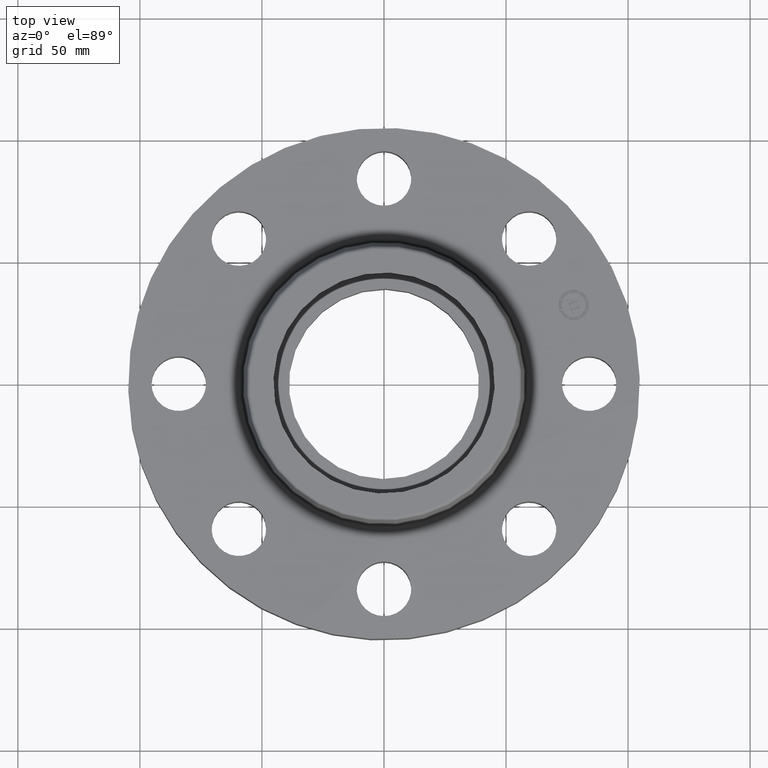
[diagram: clean part render]
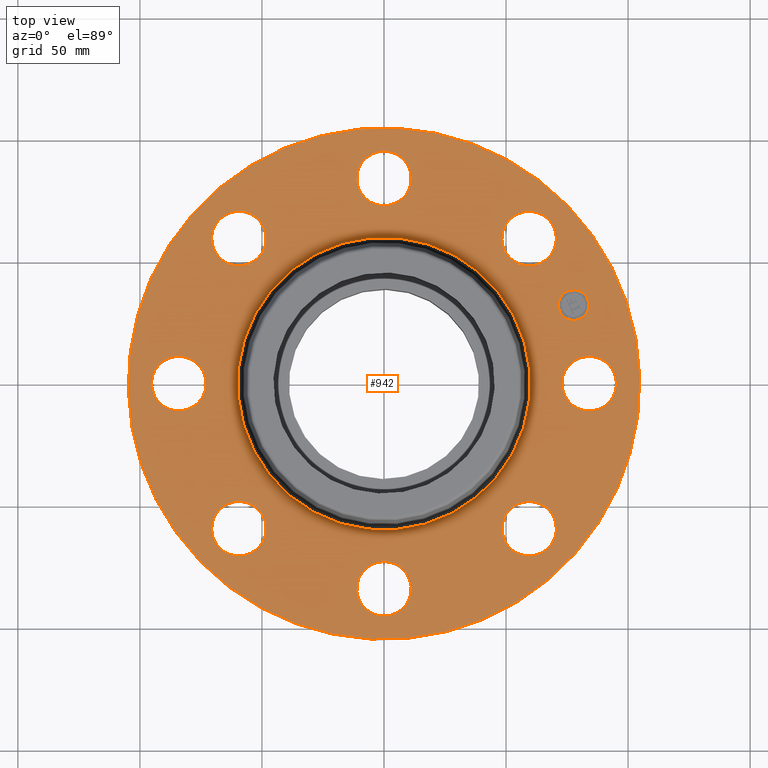
[diagram: same view with one face highlighted and labeled with its STEP entity id]
A machine part, top view. The second image highlights one B-rep face of the part: STEP entity #942.
In plain terms, the highlighted planar face has unit normal (0, 0, -1).
Its self-contained STEP definition (entity closure, byte-faithful):
#306=AXIS2_PLACEMENT_3D('Circle Axis2P3D',#304,#305,$) ;
#325=AXIS2_PLACEMENT_3D('Circle Axis2P3D',#323,#324,$) ;
#342=AXIS2_PLACEMENT_3D('Circle Axis2P3D',#340,#341,$) ;
#377=AXIS2_PLACEMENT_3D('Circle Axis2P3D',#375,#376,$) ;
#527=AXIS2_PLACEMENT_3D('Circle Axis2P3D',#525,#526,$) ;
#539=AXIS2_PLACEMENT_3D('Circle Axis2P3D',#537,#538,$) ;
#570=AXIS2_PLACEMENT_3D('Circle Axis2P3D',#568,#569,$) ;
#582=AXIS2_PLACEMENT_3D('Circle Axis2P3D',#580,#581,$) ;
#613=AXIS2_PLACEMENT_3D('Circle Axis2P3D',#611,#612,$) ;
#625=AXIS2_PLACEMENT_3D('Circle Axis2P3D',#623,#624,$) ;
#656=AXIS2_PLACEMENT_3D('Circle Axis2P3D',#654,#655,$) ;
#668=AXIS2_PLACEMENT_3D('Circle Axis2P3D',#666,#667,$) ;
#699=AXIS2_PLACEMENT_3D('Circle Axis2P3D',#697,#698,$) ;
#711=AXIS2_PLACEMENT_3D('Circle Axis2P3D',#709,#710,$) ;
#742=AXIS2_PLACEMENT_3D('Circle Axis2P3D',#740,#741,$) ;
#754=AXIS2_PLACEMENT_3D('Circle Axis2P3D',#752,#753,$) ;
#785=AXIS2_PLACEMENT_3D('Circle Axis2P3D',#783,#784,$) ;
#797=AXIS2_PLACEMENT_3D('Circle Axis2P3D',#795,#796,$) ;
#828=AXIS2_PLACEMENT_3D('Circle Axis2P3D',#826,#827,$) ;
#840=AXIS2_PLACEMENT_3D('Circle Axis2P3D',#838,#839,$) ;
#882=AXIS2_PLACEMENT_3D('Plane Axis2P3D',#879,#880,#881) ;
#926=AXIS2_PLACEMENT_3D('Circle Axis2P3D',#924,#925,$) ;
#935=AXIS2_PLACEMENT_3D('Circle Axis2P3D',#933,#934,$) ;
#301=CARTESIAN_POINT('Vertex',(-1.97763034675,-3.62002806781,1.25000000001)) ;
#304=CARTESIAN_POINT('Axis2P3D Location',(0.,0.,1.25000000001)) ;
#308=CARTESIAN_POINT('Vertex',(1.97763034675,3.62002806781,1.25000000001)) ;
#323=CARTESIAN_POINT('Axis2P3D Location',(0.,0.,1.25000000001)) ;
#340=CARTESIAN_POINT('Axis2P3D Location',(0.,0.,1.25000000001)) ;
#344=CARTESIAN_POINT('Vertex',(1.13161014174,2.07139847022,1.25000000001)) ;
#346=CARTESIAN_POINT('Vertex',(-1.13161014174,-2.07139847022,1.25000000001)) ;
#375=CARTESIAN_POINT('Axis2P3D Location',(0.,0.,1.25000000001)) ;
#515=CARTESIAN_POINT('Vertex',(2.76272528293,2.46440083944,1.25000000001)) ;
#522=CARTESIAN_POINT('Vertex',(1.91832160854,2.21664605203,1.25000000001)) ;
#525=CARTESIAN_POINT('Axis2P3D Location',(2.34052344574,2.34052344574,1.25000000001)) ;
#537=CARTESIAN_POINT('Axis2P3D Location',(2.34052344574,2.34052344574,1.25000000001)) ;
#558=CARTESIAN_POINT('Vertex',(0.210947236987,3.69613632725,1.25000000001)) ;
#565=CARTESIAN_POINT('Vertex',(-0.210947236987,2.92386367278,1.25000000001)) ;
#568=CARTESIAN_POINT('Axis2P3D Location',(-6.08037135779E-016,3.31000000001,1.25000000001)) ;
#580=CARTESIAN_POINT('Axis2P3D Location',(-6.08037135779E-016,3.31000000001,1.25000000001)) ;
#601=CARTESIAN_POINT('Vertex',(-2.46440083944,2.76272528293,1.25000000001)) ;
#608=CARTESIAN_POINT('Vertex',(-2.21664605203,1.91832160854,1.25000000001)) ;
#611=CARTESIAN_POINT('Axis2P3D Location',(-2.34052344574,2.34052344574,1.25000000001)) ;
#623=CARTESIAN_POINT('Axis2P3D Location',(-2.34052344574,2.34052344574,1.25000000001)) ;
#644=CARTESIAN_POINT('Vertex',(-3.69613632725,0.210947236987,1.25000000001)) ;
#651=CARTESIAN_POINT('Vertex',(-2.92386367278,-0.210947236987,1.25000000001)) ;
#654=CARTESIAN_POINT('Axis2P3D Location',(-3.31000000001,-4.05358090519E-016,1.25000000001)) ;
#666=CARTESIAN_POINT('Axis2P3D Location',(-3.31000000001,-4.05358090519E-016,1.25000000001)) ;
#687=CARTESIAN_POINT('Vertex',(-2.76272528293,-2.46440083944,1.25000000001)) ;
#694=CARTESIAN_POINT('Vertex',(-1.91832160854,-2.21664605203,1.25000000001)) ;
#697=CARTESIAN_POINT('Axis2P3D Location',(-2.34052344574,-2.34052344574,1.25000000001)) ;
#709=CARTESIAN_POINT('Axis2P3D Location',(-2.34052344574,-2.34052344574,1.25000000001)) ;
#730=CARTESIAN_POINT('Vertex',(-0.210947236987,-3.69613632725,1.25000000001)) ;
#737=CARTESIAN_POINT('Vertex',(0.210947236987,-2.92386367278,1.25000000001)) ;
#740=CARTESIAN_POINT('Axis2P3D Location',(-3.56803423843E-016,-3.31000000001,1.25000000001)) ;
#752=CARTESIAN_POINT('Axis2P3D Location',(-3.56803423843E-016,-3.31000000001,1.25000000001)) ;
#773=CARTESIAN_POINT('Vertex',(2.46440083944,-2.76272528293,1.25000000001)) ;
#780=CARTESIAN_POINT('Vertex',(2.21664605203,-1.91832160854,1.25000000001)) ;
#783=CARTESIAN_POINT('Axis2P3D Location',(2.34052344574,-2.34052344574,1.25000000001)) ;
#795=CARTESIAN_POINT('Axis2P3D Location',(2.34052344574,-2.34052344574,1.25000000001)) ;
#816=CARTESIAN_POINT('Vertex',(2.92386367278,0.210947236987,1.25000000001)) ;
#823=CARTESIAN_POINT('Vertex',(3.69613632725,-0.210947236987,1.25000000001)) ;
#826=CARTESIAN_POINT('Axis2P3D Location',(3.31000000001,0.,1.25000000001)) ;
#838=CARTESIAN_POINT('Axis2P3D Location',(3.31000000001,0.,1.25000000001)) ;
#879=CARTESIAN_POINT('Axis2P3D Location',(0.,4.12500000002,1.25000000001)) ;
#924=CARTESIAN_POINT('Axis2P3D Location',(3.05804125262,1.26668216113,1.25000000001)) ;
#928=CARTESIAN_POINT('Vertex',(2.96332710311,1.49534234543,1.25000000001)) ;
#930=CARTESIAN_POINT('Vertex',(3.15275540214,1.03802197684,1.25000000001)) ;
#933=CARTESIAN_POINT('Axis2P3D Location',(3.05804125262,1.26668216113,1.25000000001)) ;
#305=DIRECTION('Axis2P3D Direction',(0.,0.,-0.0393700787402)) ;
#324=DIRECTION('Axis2P3D Direction',(0.,0.,-0.0393700787402)) ;
#341=DIRECTION('Axis2P3D Direction',(0.,0.,-0.0393700787402)) ;
#376=DIRECTION('Axis2P3D Direction',(0.,0.,-0.0393700787402)) ;
#526=DIRECTION('Axis2P3D Direction',(0.,0.,-0.0393700787402)) ;
#538=DIRECTION('Axis2P3D Direction',(0.,0.,-0.0393700787402)) ;
#569=DIRECTION('Axis2P3D Direction',(0.,0.,-0.0393700787402)) ;
#581=DIRECTION('Axis2P3D Direction',(0.,0.,-0.0393700787402)) ;
#612=DIRECTION('Axis2P3D Direction',(0.,0.,-0.0393700787402)) ;
#624=DIRECTION('Axis2P3D Direction',(0.,0.,-0.0393700787402)) ;
#655=DIRECTION('Axis2P3D Direction',(-0.,0.,-0.0393700787402)) ;
#667=DIRECTION('Axis2P3D Direction',(-0.,0.,-0.0393700787402)) ;
#698=DIRECTION('Axis2P3D Direction',(-0.,0.,-0.0393700787402)) ;
#710=DIRECTION('Axis2P3D Direction',(-0.,0.,-0.0393700787402)) ;
#741=DIRECTION('Axis2P3D Direction',(0.,-0.,-0.0393700787402)) ;
#753=DIRECTION('Axis2P3D Direction',(0.,-0.,-0.0393700787402)) ;
#784=DIRECTION('Axis2P3D Direction',(0.,-0.,-0.0393700787402)) ;
#796=DIRECTION('Axis2P3D Direction',(0.,-0.,-0.0393700787402)) ;
#827=DIRECTION('Axis2P3D Direction',(0.,-0.,-0.0393700787402)) ;
#839=DIRECTION('Axis2P3D Direction',(0.,-0.,-0.0393700787402)) ;
#880=DIRECTION('Axis2P3D Direction',(0.,0.,-0.0393700787402)) ;
#881=DIRECTION('Axis2P3D XDirection',(0.0393700787402,0.,0.)) ;
#925=DIRECTION('Axis2P3D Direction',(0.,0.,-0.0393700787402)) ;
#934=DIRECTION('Axis2P3D Direction',(0.,0.,-0.0393700787402)) ;
#885=ORIENTED_EDGE('',*,*,#327,.F.) ;
#886=ORIENTED_EDGE('',*,*,#310,.F.) ;
#889=ORIENTED_EDGE('',*,*,#830,.T.) ;
#890=ORIENTED_EDGE('',*,*,#842,.T.) ;
#893=ORIENTED_EDGE('',*,*,#379,.T.) ;
#894=ORIENTED_EDGE('',*,*,#348,.T.) ;
#897=ORIENTED_EDGE('',*,*,#787,.T.) ;
#898=ORIENTED_EDGE('',*,*,#799,.T.) ;
#901=ORIENTED_EDGE('',*,*,#744,.T.) ;
#902=ORIENTED_EDGE('',*,*,#756,.T.) ;
#905=ORIENTED_EDGE('',*,*,#701,.T.) ;
#906=ORIENTED_EDGE('',*,*,#713,.T.) ;
#909=ORIENTED_EDGE('',*,*,#658,.T.) ;
#910=ORIENTED_EDGE('',*,*,#670,.T.) ;
#913=ORIENTED_EDGE('',*,*,#615,.T.) ;
#914=ORIENTED_EDGE('',*,*,#627,.T.) ;
#917=ORIENTED_EDGE('',*,*,#572,.T.) ;
#918=ORIENTED_EDGE('',*,*,#584,.T.) ;
#921=ORIENTED_EDGE('',*,*,#529,.T.) ;
#922=ORIENTED_EDGE('',*,*,#541,.T.) ;
#939=ORIENTED_EDGE('',*,*,#932,.T.) ;
#940=ORIENTED_EDGE('',*,*,#937,.T.) ;
#891=FACE_BOUND('',#888,.T.) ;
#895=FACE_BOUND('',#892,.T.) ;
#899=FACE_BOUND('',#896,.T.) ;
#903=FACE_BOUND('',#900,.T.) ;
#907=FACE_BOUND('',#904,.T.) ;
#911=FACE_BOUND('',#908,.T.) ;
#915=FACE_BOUND('',#912,.T.) ;
#919=FACE_BOUND('',#916,.T.) ;
#923=FACE_BOUND('',#920,.T.) ;
#941=FACE_BOUND('',#938,.T.) ;
#942=ADVANCED_FACE('PartBody',(#887,#891,#895,#899,#903,#907,#911,#915,#919,#923,#941),#883,.F.) ;
#307=CIRCLE('generated circle',#306,4.12500000002) ;
#326=CIRCLE('generated circle',#325,4.12500000002) ;
#343=CIRCLE('generated circle',#342,2.36034597788) ;
#378=CIRCLE('generated circle',#377,2.36034597788) ;
#528=CIRCLE('generated circle',#527,0.440000000002) ;
#540=CIRCLE('generated circle',#539,0.440000000002) ;
#571=CIRCLE('generated circle',#570,0.440000000002) ;
#583=CIRCLE('generated circle',#582,0.440000000002) ;
#614=CIRCLE('generated circle',#613,0.440000000002) ;
#626=CIRCLE('generated circle',#625,0.440000000002) ;
#657=CIRCLE('generated circle',#656,0.440000000002) ;
#669=CIRCLE('generated circle',#668,0.440000000002) ;
#700=CIRCLE('generated circle',#699,0.440000000002) ;
#712=CIRCLE('generated circle',#711,0.440000000002) ;
#743=CIRCLE('generated circle',#742,0.440000000002) ;
#755=CIRCLE('generated circle',#754,0.440000000002) ;
#786=CIRCLE('generated circle',#785,0.440000000002) ;
#798=CIRCLE('generated circle',#797,0.440000000002) ;
#829=CIRCLE('generated circle',#828,0.440000000002) ;
#841=CIRCLE('generated circle',#840,0.440000000002) ;
#927=CIRCLE('generated circle',#926,0.247500000001) ;
#936=CIRCLE('generated circle',#935,0.247500000001) ;
#310=EDGE_CURVE('',#302,#309,#307,.T.) ;
#327=EDGE_CURVE('',#309,#302,#326,.T.) ;
#348=EDGE_CURVE('',#345,#347,#343,.T.) ;
#379=EDGE_CURVE('',#347,#345,#378,.T.) ;
#529=EDGE_CURVE('',#516,#523,#528,.T.) ;
#541=EDGE_CURVE('',#523,#516,#540,.T.) ;
#572=EDGE_CURVE('',#559,#566,#571,.T.) ;
#584=EDGE_CURVE('',#566,#559,#583,.T.) ;
#615=EDGE_CURVE('',#602,#609,#614,.T.) ;
#627=EDGE_CURVE('',#609,#602,#626,.T.) ;
#658=EDGE_CURVE('',#645,#652,#657,.T.) ;
#670=EDGE_CURVE('',#652,#645,#669,.T.) ;
#701=EDGE_CURVE('',#688,#695,#700,.T.) ;
#713=EDGE_CURVE('',#695,#688,#712,.T.) ;
#744=EDGE_CURVE('',#731,#738,#743,.T.) ;
#756=EDGE_CURVE('',#738,#731,#755,.T.) ;
#787=EDGE_CURVE('',#774,#781,#786,.T.) ;
#799=EDGE_CURVE('',#781,#774,#798,.T.) ;
#830=EDGE_CURVE('',#817,#824,#829,.T.) ;
#842=EDGE_CURVE('',#824,#817,#841,.T.) ;
#932=EDGE_CURVE('',#929,#931,#927,.T.) ;
#937=EDGE_CURVE('',#931,#929,#936,.T.) ;
#884=EDGE_LOOP('',(#885,#886)) ;
#888=EDGE_LOOP('',(#889,#890)) ;
#892=EDGE_LOOP('',(#893,#894)) ;
#896=EDGE_LOOP('',(#897,#898)) ;
#900=EDGE_LOOP('',(#901,#902)) ;
#904=EDGE_LOOP('',(#905,#906)) ;
#908=EDGE_LOOP('',(#909,#910)) ;
#912=EDGE_LOOP('',(#913,#914)) ;
#916=EDGE_LOOP('',(#917,#918)) ;
#920=EDGE_LOOP('',(#921,#922)) ;
#938=EDGE_LOOP('',(#939,#940)) ;
#887=FACE_OUTER_BOUND('',#884,.T.) ;
#883=PLANE('',#882) ;
#302=VERTEX_POINT('',#301) ;
#309=VERTEX_POINT('',#308) ;
#345=VERTEX_POINT('',#344) ;
#347=VERTEX_POINT('',#346) ;
#516=VERTEX_POINT('',#515) ;
#523=VERTEX_POINT('',#522) ;
#559=VERTEX_POINT('',#558) ;
#566=VERTEX_POINT('',#565) ;
#602=VERTEX_POINT('',#601) ;
#609=VERTEX_POINT('',#608) ;
#645=VERTEX_POINT('',#644) ;
#652=VERTEX_POINT('',#651) ;
#688=VERTEX_POINT('',#687) ;
#695=VERTEX_POINT('',#694) ;
#731=VERTEX_POINT('',#730) ;
#738=VERTEX_POINT('',#737) ;
#774=VERTEX_POINT('',#773) ;
#781=VERTEX_POINT('',#780) ;
#817=VERTEX_POINT('',#816) ;
#824=VERTEX_POINT('',#823) ;
#929=VERTEX_POINT('',#928) ;
#931=VERTEX_POINT('',#930) ;